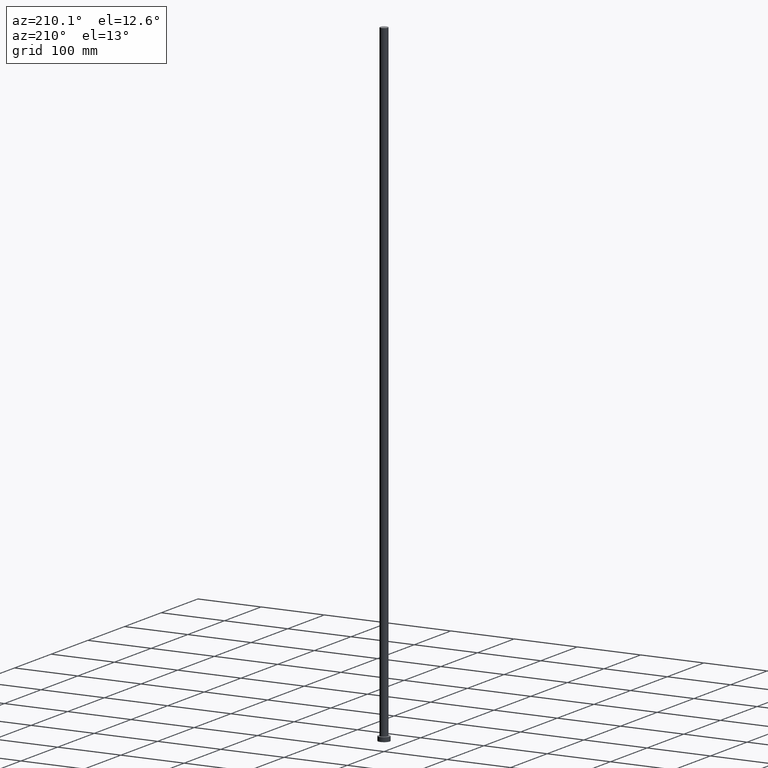
[diagram: clean part render]
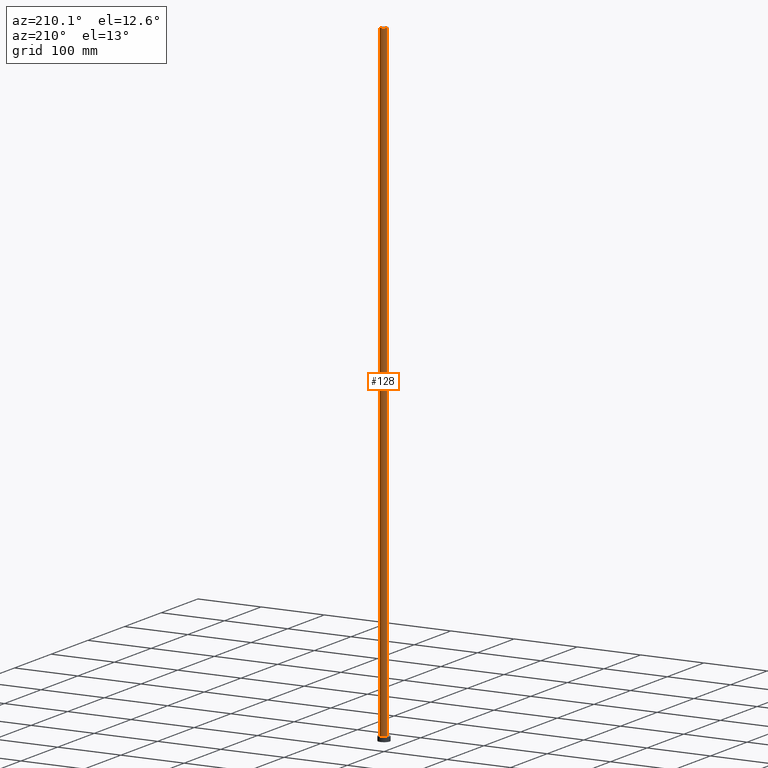
[diagram: same view with one face highlighted and labeled with its STEP entity id]
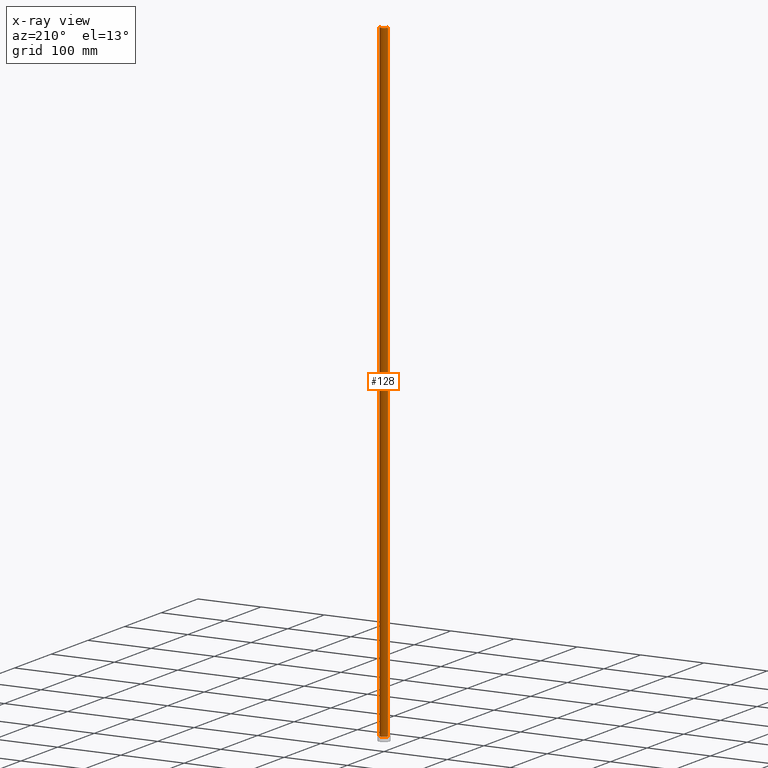
[diagram: x-ray of the same camera — body ghosted, the highlighted face saturated]
A machine part, auxiliary view. The second image highlights one B-rep face of the part: STEP entity #128.
The next image is the same camera in x-ray: the body ghosted, the highlighted face saturated — about 0% of this face is hidden behind the body in this view.
In plain terms, the highlighted cylindrical surface (edge-blend (fillet) strip) has radius 6.1 mm, axis along (-0, -0, -1).
Its self-contained STEP definition (entity closure, byte-faithful):
#10 = ORIENTED_EDGE ( 'NONE', *, *, #39, .T. ) ;
#16 = CARTESIAN_POINT ( 'NONE',  ( 0.000000000000000000, 0.000000000000000000, 1000.000000000000000 ) ) ;
#32 = FACE_OUTER_BOUND ( 'NONE', #44, .T. ) ;
#34 = DIRECTION ( 'NONE',  ( -1.000000000000000000, 0.000000000000000000, 0.000000000000000000 ) ) ;
#35 = DIRECTION ( 'NONE',  ( 0.000000000000000000, 0.000000000000000000, 1.000000000000000000 ) ) ;
#37 = EDGE_CURVE ( 'NONE', #135, #216, #142, .T. ) ;
#39 = EDGE_CURVE ( 'NONE', #176, #216, #110, .T. ) ;
#44 = EDGE_LOOP ( 'NONE', ( #222, #220, #10, #100 ) ) ;
#57 = CARTESIAN_POINT ( 'NONE',  ( 6.099999999999999645, 7.470345474798854293E-16, 1000.000000000000000 ) ) ;
#58 = CARTESIAN_POINT ( 'NONE',  ( 6.099999999999999645, 7.470345474798854293E-16, 1000.000000000000000 ) ) ;
#68 = EDGE_CURVE ( 'NONE', #129, #135, #233, .T. ) ;
#76 = VECTOR ( 'NONE', #215, 1000.000000000000000 ) ;
#79 = CARTESIAN_POINT ( 'NONE',  ( -6.099999999999999645, 0.000000000000000000, 1000.000000000000000 ) ) ;
#80 = LINE ( 'NONE', #58, #76 ) ;
#81 = DIRECTION ( 'NONE',  ( 0.000000000000000000, 0.000000000000000000, 1.000000000000000000 ) ) ;
#91 = AXIS2_PLACEMENT_3D ( 'NONE', #16, #96, #34 ) ;
#96 = DIRECTION ( 'NONE',  ( -0.000000000000000000, -0.000000000000000000, -1.000000000000000000 ) ) ;
#99 = VECTOR ( 'NONE', #232, 1000.000000000000000 ) ;
#100 = ORIENTED_EDGE ( 'NONE', *, *, #37, .F. ) ;
#101 = AXIS2_PLACEMENT_3D ( 'NONE', #214, #81, #184 ) ;
#110 = CIRCLE ( 'NONE', #101, 6.099999999999999645 ) ;
#123 = CARTESIAN_POINT ( 'NONE',  ( 6.099999999999999645, 7.470345474798854293E-16, 7.000000000000000000 ) ) ;
#126 = CARTESIAN_POINT ( 'NONE',  ( -6.099999999999999645, 0.000000000000000000, 1000.000000000000000 ) ) ;
#128 = ADVANCED_FACE ( 'NONE', ( #32 ), #211, .T. ) ;
#129 = VERTEX_POINT ( 'NONE', #57 ) ;
#135 = VERTEX_POINT ( 'NONE', #126 ) ;
#140 = DIRECTION ( 'NONE',  ( 1.000000000000000000, 0.000000000000000000, 0.000000000000000000 ) ) ;
#142 = LINE ( 'NONE', #79, #99 ) ;
#176 = VERTEX_POINT ( 'NONE', #123 ) ;
#184 = DIRECTION ( 'NONE',  ( 1.000000000000000000, 0.000000000000000000, 0.000000000000000000 ) ) ;
#189 = CARTESIAN_POINT ( 'NONE',  ( -6.099999999999999645, 0.000000000000000000, 7.000000000000000000 ) ) ;
#200 = AXIS2_PLACEMENT_3D ( 'NONE', #212, #35, #140 ) ;
#211 = CYLINDRICAL_SURFACE ( 'NONE', #91, 6.099999999999999645 ) ;
#212 = CARTESIAN_POINT ( 'NONE',  ( 0.000000000000000000, 0.000000000000000000, 1000.000000000000000 ) ) ;
#214 = CARTESIAN_POINT ( 'NONE',  ( 0.000000000000000000, 0.000000000000000000, 7.000000000000000000 ) ) ;
#215 = DIRECTION ( 'NONE',  ( -0.000000000000000000, -0.000000000000000000, -1.000000000000000000 ) ) ;
#216 = VERTEX_POINT ( 'NONE', #189 ) ;
#220 = ORIENTED_EDGE ( 'NONE', *, *, #250, .T. ) ;
#222 = ORIENTED_EDGE ( 'NONE', *, *, #68, .F. ) ;
#232 = DIRECTION ( 'NONE',  ( -0.000000000000000000, -0.000000000000000000, -1.000000000000000000 ) ) ;
#233 = CIRCLE ( 'NONE', #200, 6.099999999999999645 ) ;
#250 = EDGE_CURVE ( 'NONE', #129, #176, #80, .T. ) ;